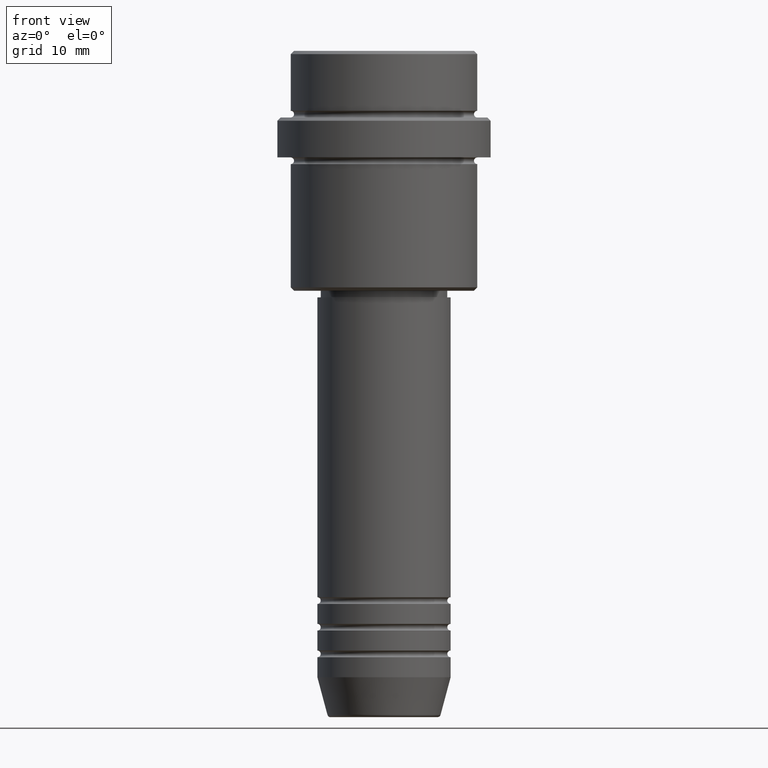
[diagram: clean part render]
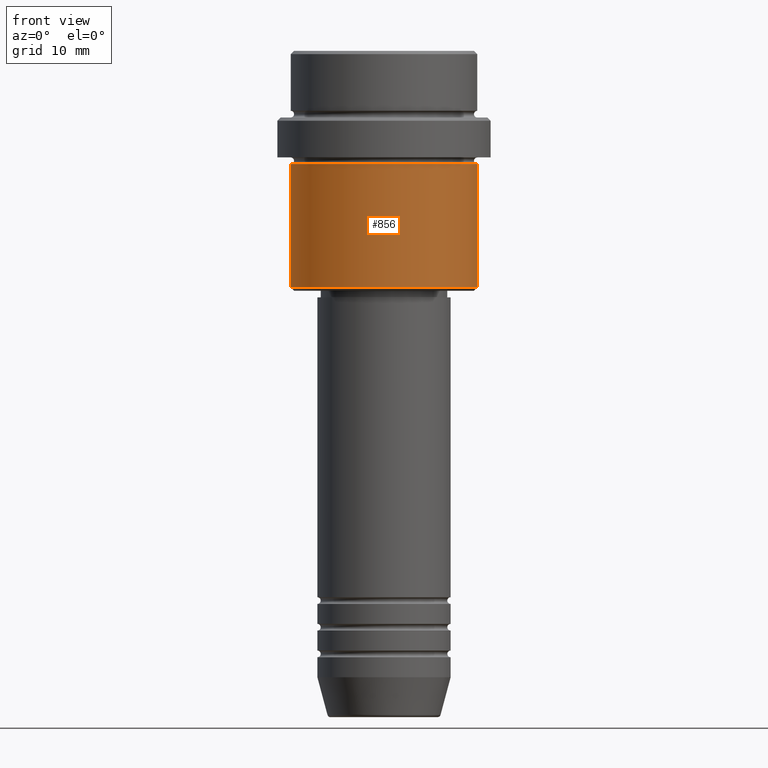
[diagram: same view with one face highlighted and labeled with its STEP entity id]
A machine part, front view. The second image highlights one B-rep face of the part: STEP entity #856.
In plain terms, the highlighted cylindrical surface (partial cylindrical patch) has radius 14 mm, axis along (-0, -0, 1).
Its self-contained STEP definition (entity closure, byte-faithful):
#46 = VECTOR ( 'NONE', #1222, 1000.000000000000000 ) ;
#57 = EDGE_CURVE ( 'NONE', #811, #778, #789, .T. ) ;
#81 = CARTESIAN_POINT ( 'NONE',  ( 13.99999999999999112, 0.000000000000000000, -17.00000000000001066 ) ) ;
#124 = DIRECTION ( 'NONE',  ( 1.000000000000000000, 0.000000000000000000, 0.000000000000000000 ) ) ;
#127 = DIRECTION ( 'NONE',  ( -1.000000000000000000, 0.000000000000000000, 0.000000000000000000 ) ) ;
#144 = EDGE_CURVE ( 'NONE', #405, #705, #931, .T. ) ;
#146 = CYLINDRICAL_SURFACE ( 'NONE', #668, 13.99999999999999467 ) ;
#148 = DIRECTION ( 'NONE',  ( 1.000000000000000000, 0.000000000000000000, 0.000000000000000000 ) ) ;
#169 = DIRECTION ( 'NONE',  ( -0.000000000000000000, -0.000000000000000000, 1.000000000000000000 ) ) ;
#190 = CIRCLE ( 'NONE', #624, 13.99999999999999467 ) ;
#239 = CARTESIAN_POINT ( 'NONE',  ( -13.99999999999999467, 1.714505518806294046E-15, -35.50000000000001421 ) ) ;
#297 = ORIENTED_EDGE ( 'NONE', *, *, #315, .T. ) ;
#300 = ORIENTED_EDGE ( 'NONE', *, *, #498, .F. ) ;
#315 = EDGE_CURVE ( 'NONE', #811, #405, #190, .T. ) ;
#322 = CARTESIAN_POINT ( 'NONE',  ( 0.000000000000000000, 0.000000000000000000, -35.50000000000001421 ) ) ;
#405 = VERTEX_POINT ( 'NONE', #1181 ) ;
#468 = DIRECTION ( 'NONE',  ( -0.000000000000000000, -0.000000000000000000, 1.000000000000000000 ) ) ;
#476 = VECTOR ( 'NONE', #169, 1000.000000000000000 ) ;
#498 = EDGE_CURVE ( 'NONE', #778, #705, #1216, .T. ) ;
#593 = CARTESIAN_POINT ( 'NONE',  ( -13.99999999999999467, 1.714505518806294046E-15, 0.000000000000000000 ) ) ;
#624 = AXIS2_PLACEMENT_3D ( 'NONE', #322, #1309, #127 ) ;
#668 = AXIS2_PLACEMENT_3D ( 'NONE', #1086, #1204, #124 ) ;
#682 = FACE_OUTER_BOUND ( 'NONE', #995, .T. ) ;
#705 = VERTEX_POINT ( 'NONE', #81 ) ;
#778 = VERTEX_POINT ( 'NONE', #1296 ) ;
#789 = LINE ( 'NONE', #593, #46 ) ;
#811 = VERTEX_POINT ( 'NONE', #239 ) ;
#841 = CARTESIAN_POINT ( 'NONE',  ( 13.99999999999999467, 0.000000000000000000, 0.000000000000000000 ) ) ;
#856 = ADVANCED_FACE ( 'NONE', ( #682 ), #146, .T. ) ;
#869 = ORIENTED_EDGE ( 'NONE', *, *, #144, .T. ) ;
#931 = LINE ( 'NONE', #841, #476 ) ;
#988 = ORIENTED_EDGE ( 'NONE', *, *, #57, .F. ) ;
#995 = EDGE_LOOP ( 'NONE', ( #988, #297, #869, #300 ) ) ;
#1009 = AXIS2_PLACEMENT_3D ( 'NONE', #1129, #468, #148 ) ;
#1086 = CARTESIAN_POINT ( 'NONE',  ( 0.000000000000000000, 0.000000000000000000, 0.000000000000000000 ) ) ;
#1129 = CARTESIAN_POINT ( 'NONE',  ( 0.000000000000000000, 0.000000000000000000, -17.00000000000001066 ) ) ;
#1181 = CARTESIAN_POINT ( 'NONE',  ( 13.99999999999999467, 0.000000000000000000, -35.50000000000001421 ) ) ;
#1204 = DIRECTION ( 'NONE',  ( -0.000000000000000000, -0.000000000000000000, 1.000000000000000000 ) ) ;
#1216 = CIRCLE ( 'NONE', #1009, 13.99999999999999112 ) ;
#1222 = DIRECTION ( 'NONE',  ( -0.000000000000000000, -0.000000000000000000, 1.000000000000000000 ) ) ;
#1296 = CARTESIAN_POINT ( 'NONE',  ( -13.99999999999999112, 1.714505518806293849E-15, -17.00000000000001066 ) ) ;
#1309 = DIRECTION ( 'NONE',  ( -0.000000000000000000, -0.000000000000000000, 1.000000000000000000 ) ) ;